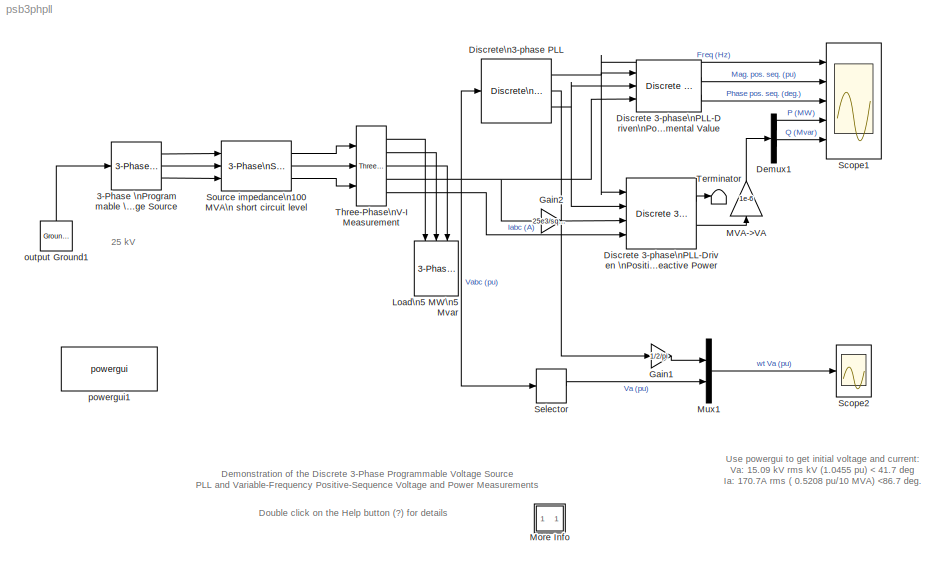
MODEL psb3phpll
KIND model
CONFIG InitFcn = powericon('psbinitsys',bdroot);
BLOCK [Reference] 3-Phase \nProgrammable \nVoltage Source  REF=powerlib2/Electrical\nSources/3-Phase \nProgrammable \nVoltage Source
  HarmonicGeneration = off
  Par_HarmoA_pu = [3 0.2 -25 0]
  Par_HarmoB_pu = [2 0.15  35 2]
  Par_Timing_Harmo = [0.05  3]
  Par_Timing_Variation = [0.5 3.0]
  Par_Vps_LLrms = [25e3  45 60]
  Ports = [1, 3]
  SinglePhase = off
  SourceBlock = powerlib2/Electrical\nSources/3-Phase \nProgrammable \nVoltage Source
  SourceType = 3-phase Programmable Voltage Source
  VariationEntity = Frequency
  VariationFreq = 0.4
  VariationMag = 3
  VariationRate = 10
  VariationStep = -0.5
  VariationType = Modulation
  Xtime = [0 0.1 0.15 0.2]
  Yampli = [1 0.8 1.2 1.0]
BLOCK [Demux] Demux1
  Outputs = 2
  Ports = [1, 2]
BLOCK [Reference] Discrete 3-phase\nPLL-Driven \nPositive-Sequence\nActive & Reactive Power  REF=powerlib_extras/Discrete\nMeasurements/Discrete 3-phase\nPLL-Driven \nPositive-Sequence\nActive & Reactive Power
  Finit = 60
  Fmin = 45
  Par_Iinit = [170.7*sqrt(2) 86.7]
  Par_Vinit = [15.09e3*sqrt(2) 41.7]
  Ports = [4, 2]
  SourceBlock = powerlib_extras/Discrete\nMeasurements/Discrete 3-phase\nPLL-Driven \nPositive-Sequence\nActive & Reactive Power
  SourceType = Discrete 3-phase PLL-Driven Positive-Sequence Active & Reactive Power
  Ts = 50e-6
BLOCK [Reference] Discrete 3-phase\nPLL-Driven\nPositive-Sequence\nFundamental Value  REF=powerlib_extras/Discrete\nMeasurements/Discrete 3-phase\nPLL-Driven\nPositive-Sequence\nFundamental Value
  Finit = 60
  Fmin = 45
  Par_Init = [1.0455 41.7]
  Ports = [3, 2]
  SourceBlock = powerlib_extras/Discrete\nMeasurements/Discrete 3-phase\nPLL-Driven\nPositive-Sequence\nFundamental Value
  SourceType = Discrete 3-phase PLL-Driven Positive-Sequence Fundamental Value
  Ts = 50e-6
BLOCK [Reference] Discrete\n3-phase PLL  REF=powerlib_extras/Discrete \nControl Blocks/Discrete\n3-phase PLL
  Fmin = 45
  ParK = [60 1400]
  Par_Init = [41.7 60]
  Ports = [1, 3]
  SourceBlock = powerlib_extras/Discrete \nControl Blocks/Discrete\n3-phase PLL
  SourceType = Discrete 3-phase PLL
  Ts = 50e-6
BLOCK [Gain] Gain1
  Gain = 1/2/pi
BLOCK [Gain] Gain2
  Gain = 25e3/sqrt(3)*sqrt(2)
BLOCK [Reference] Load\n5 MW\n5 Mvar  REF=powerlib2/Elements/3-Phase\nParallel RLC Load
  P3 = 5e6
  Ports = [3]
  QC3 = 5e6
  QL3 = 0
  SourceBlock = powerlib2/Elements/3-Phase\nParallel RLC Load
  SourceType = 3-phase parallel RLC load
  Vpp = 25e3
  fn = 60
BLOCK [Gain] MVA->VA
  Gain = 1e-6
BLOCK [SubSystem] More Info
  MaskDisplay = disp('?')
  MaskIconFrame = on
  MaskIconOpaque = on
  MaskIconRotate = none
  MaskIconUnits = autoscale
  MinAlgLoopOccurrences = off
  Ports = []
  RTWSystemCode = Auto
  TreatAsAtomicUnit = off
BLOCK [Mux] Mux1
  DisplayOption = bar
  Inputs = 2
  Ports = [2, 1]
BLOCK [Scope] Scope1
  DataFormat = Array
  LimitDataPoints = off
  NumInputPorts = 5
  Ports = [5]
  SampleInput = on
  TimeRange = 3.5
  YMax = 64~1.051~2~5.529999999999999~-5.1
  YMin = 56~1.04~-2~5.41~-5.800000000000001
  ZoomMode = yonly
BLOCK [Scope] Scope2
  DataFormat = Array
  LimitDataPoints = off
  NumInputPorts = 1
  Ports = [1]
  SampleInput = on
  TimeRange = 0.05
  YMax = 1.1
  YMin = -1.1
  ZoomMode = xonly
BLOCK [Selector] Selector
  InputPortWidth = 3
  Ports = [1, 1]
BLOCK [Reference] Source impedance\n100 MVA\n short circuit level  REF=powerlib2/Elements/3-Phase\nSeries RLC Branch 
  C = inf
  L = 25^2/100/377
  Ports = [3, 3]
  R = 25^2/100/10
  SourceBlock = powerlib2/Elements/3-Phase\nSeries RLC Branch
  SourceType = 3-phase RLC series element
BLOCK [Terminator] Terminator
BLOCK [Reference] Three-Phase\nV-I Measurement  REF=powerlib2/Measurements/Three-Phase\nV-I Measurement
  IChoice = yes
  OutputType = Magnitude
  PSBOutputType = 11100
  PSBequivalent = 1
  Pbase = 10e6
  PhasorSimulation = off
  Ports = [3, 5]
  Ppu = off
  SourceBlock = powerlib2/Measurements/Three-Phase\nV-I Measurement
  SourceType = 3-Phase VI Measurement
  Tag = PoWeRsYsTeMmEaSuReMeNt
  VChoice = phase-to-ground
  Vbase = 25e3
  Vpu = on
  labelC = I1
  labelV = V1
  ualc = off
  ualv = off
BLOCK [Reference] output Ground1  REF=powerlib2/Connectors/Ground (output)
  PSBOutputType = 1
  Ports = [0, 1]
  SourceBlock = powerlib2/Connectors/Ground (output)
  SourceType = Ground
  Tag = PoWeRsYsTeMbLoCk
BLOCK [Reference] powergui1  REF=powerlib2/powergui
  DisplayStyle = off
  Frange = [0:2:500]
  FreqAxis = off
  MaxFrequency = 1000
  Ports = []
  RmsSteady = 2
  SourceBlock = powerlib2/powergui
  SourceType = PSB option menu block
  StartTime = 0.0
  Ts = 50e-6
  Xlog = off
  Ylog = off
  ZoomFFT = on
  cycles = 1
  display = off
  echomessages = off
  frequency = 60
  frequencyindice = 1
  frequencyindicesteady = 1
  fundamental = 60
  methode = off
  save = off
  variable = ZData
ANNOTATION (root): 25 kV
ANNOTATION (root): Demonstration of the Discrete 3-Phase Programmable Voltage Source\nPLL and Variable-Frequency Positive-Sequence Voltage and Power Measurements
ANNOTATION (root): Double click on the Help button (?) for details
ANNOTATION (root): Use powergui to get initial voltage and current:\nVa: 15.09 kV rms kV (1.0455 pu) < 41.7 deg\nIa: 170.7A rms ( 0.5208 pu/10 MVA) <86.7 deg.\n
ANNOTATION More Info: A 25kV, 100 MVA short-circuit level, equivalent network feeds a 5 MW, 5 Mvar capacitive load.\nThe internal voltage of the source is controlled by the Dicrete 3-Phase Programmable Voltage Source block.\n\nOpen the programmable source dialog box and look at the parameters controlling the voltage and frequency. \nA 60 Hz, positive-sequence of 1.0 pu, 45 degrees is specified.\nAt t = 0.5 s a sinusoid...<+1069ch>
ANNOTATION More Info: Circuit Description
ANNOTATION More Info: Demonstration
ANNOTATION More Info: G. Sybille and P. Giroux (Hydro-Quebec)
ANNOTATION More Info: Select Simulation/Start.\n\nObserve on Scope1 block how the PLL tracks the changing system frequency (trace 1).\nAs expected, the system frequency varies between 57 Hz and 63 Hz with a maximum rate of change of 7.5 Hz/s.\nTraces 2 and 3 show the variations of magnitude and phase of positive-sequence voltage as the frequency is changing.\nTraces 4 and 5 show the variations of active and reactive po...<+114ch>
ANNOTATION More Info: This demonstration ilustrates use of the 3-Phase Programmble Voltage Source,\nPLL and Variable-Frequency Positive-Sequence Voltage and Power Measurement blocks
LINE 3-Phase \nProgrammable \nVoltage Source:1 -> Source impedance\n100 MVA\n short circuit level:1
LINE 3-Phase \nProgrammable \nVoltage Source:2 -> Source impedance\n100 MVA\n short circuit level:2
LINE 3-Phase \nProgrammable \nVoltage Source:3 -> Source impedance\n100 MVA\n short circuit level:3
LINE Demux1:1 -> Scope1:4
LINE Demux1:2 -> Scope1:5
LINE Discrete 3-phase\nPLL-Driven \nPositive-Sequence\nActive & Reactive Power:1 -> Terminator:1
LINE Discrete 3-phase\nPLL-Driven \nPositive-Sequence\nActive & Reactive Power:2 -> MVA->VA:1
LINE Discrete 3-phase\nPLL-Driven\nPositive-Sequence\nFundamental Value:1 -> Scope1:2
LINE Discrete 3-phase\nPLL-Driven\nPositive-Sequence\nFundamental Value:2 -> Scope1:3
NET Discrete\n3-phase PLL:1 -> Discrete 3-phase\nPLL-Driven \nPositive-Sequence\nActive & Reactive Power:1, Discrete 3-phase\nPLL-Driven\nPositive-Sequence\nFundamental Value:1, Scope1:1
LINE Discrete\n3-phase PLL:2 -> Gain1:1
NET Discrete\n3-phase PLL:3 -> Discrete 3-phase\nPLL-Driven \nPositive-Sequence\nActive & Reactive Power:2, Discrete 3-phase\nPLL-Driven\nPositive-Sequence\nFundamental Value:2
LINE Gain1:1 -> Mux1:1
LINE Gain2:1 -> Discrete 3-phase\nPLL-Driven \nPositive-Sequence\nActive & Reactive Power:3
LINE MVA->VA:1 -> Demux1:1
LINE Mux1:1 -> Scope2:1
LINE Selector:1 -> Mux1:2
LINE Source impedance\n100 MVA\n short circuit level:1 -> Three-Phase\nV-I Measurement:1
LINE Source impedance\n100 MVA\n short circuit level:2 -> Three-Phase\nV-I Measurement:2
LINE Source impedance\n100 MVA\n short circuit level:3 -> Three-Phase\nV-I Measurement:3
LINE Three-Phase\nV-I Measurement:1 -> Load\n5 MW\n5 Mvar:1
LINE Three-Phase\nV-I Measurement:2 -> Load\n5 MW\n5 Mvar:2
LINE Three-Phase\nV-I Measurement:3 -> Load\n5 MW\n5 Mvar:3
NET Three-Phase\nV-I Measurement:4 -> Discrete 3-phase\nPLL-Driven\nPositive-Sequence\nFundamental Value:3, Discrete\n3-phase PLL:1, Gain2:1, Selector:1
LINE Three-Phase\nV-I Measurement:5 -> Discrete 3-phase\nPLL-Driven \nPositive-Sequence\nActive & Reactive Power:4
LINE output Ground1:1 -> 3-Phase \nProgrammable \nVoltage Source:1
note: NET lines group one-source signal fan-out (src -> all destinations, sorted); 1:1 wires keep LINE
